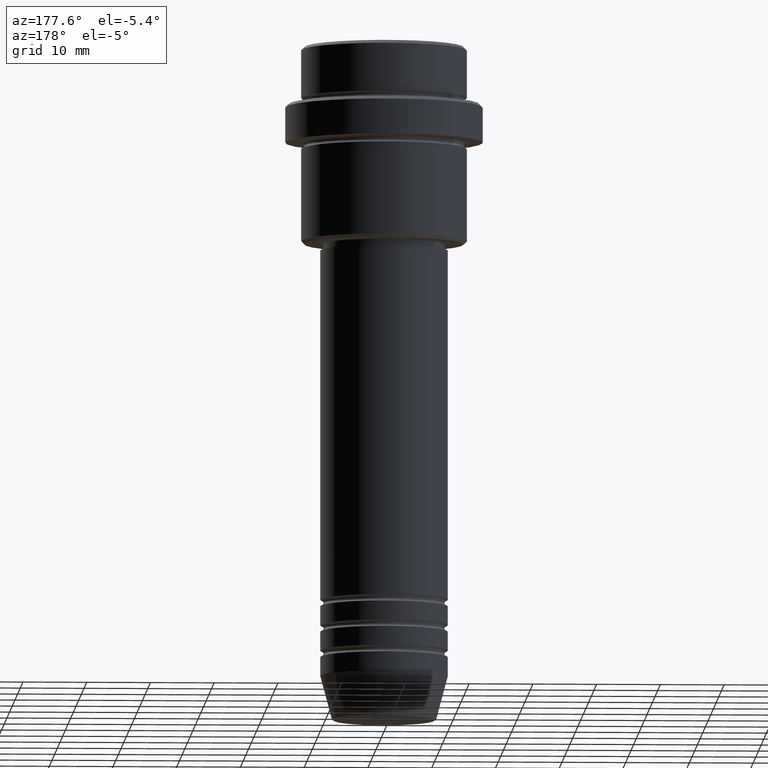
[diagram: clean part render]
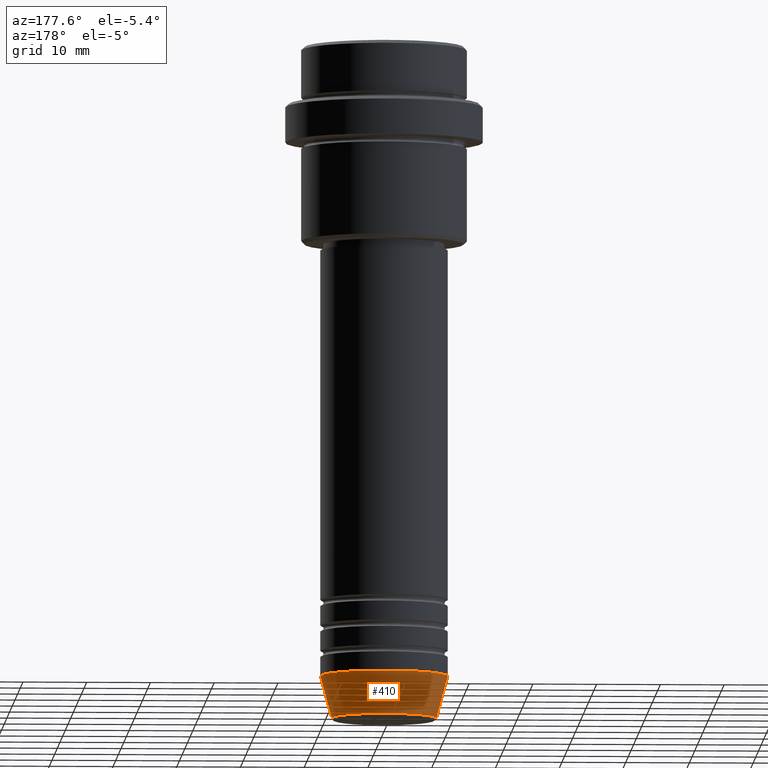
[diagram: same view with one face highlighted and labeled with its STEP entity id]
A machine part, auxiliary view. The second image highlights one B-rep face of the part: STEP entity #410.
In plain terms, the highlighted conical surface has half-angle 15 deg.
Its self-contained STEP definition (entity closure, byte-faithful):
#20 = DIRECTION ( 'NONE',  ( -0.000000000000000000, -0.000000000000000000, 1.000000000000000000 ) ) ;
#79 = DIRECTION ( 'NONE',  ( -0.2588190451025213501, 3.169619151431772337E-17, 0.9659258262890680902 ) ) ;
#89 = ORIENTED_EDGE ( 'NONE', *, *, #117, .F. ) ;
#117 = EDGE_CURVE ( 'NONE', #1191, #633, #960, .T. ) ;
#157 = CARTESIAN_POINT ( 'NONE',  ( 0.000000000000000000, 0.000000000000000000, -99.00000000000000000 ) ) ;
#233 = CARTESIAN_POINT ( 'NONE',  ( 0.000000000000000000, 0.000000000000000000, -105.6294095225512564 ) ) ;
#251 = CARTESIAN_POINT ( 'NONE',  ( 0.000000000000000000, 0.000000000000000000, -99.00000000000000000 ) ) ;
#286 = CIRCLE ( 'NONE', #935, 8.223655072137191269 ) ;
#287 = CARTESIAN_POINT ( 'NONE',  ( -10.00000000000000000, 1.224646799147353256E-15, -99.00000000000000000 ) ) ;
#340 = VERTEX_POINT ( 'NONE', #974 ) ;
#360 = VERTEX_POINT ( 'NONE', #642 ) ;
#399 = ORIENTED_EDGE ( 'NONE', *, *, #458, .T. ) ;
#408 = ORIENTED_EDGE ( 'NONE', *, *, #1402, .F. ) ;
#410 = ADVANCED_FACE ( 'NONE', ( #996 ), #576, .T. ) ;
#458 = EDGE_CURVE ( 'NONE', #340, #360, #286, .T. ) ;
#469 = EDGE_LOOP ( 'NONE', ( #399, #1192, #89, #408 ) ) ;
#480 = DIRECTION ( 'NONE',  ( 1.000000000000000000, 0.000000000000000000, 0.000000000000000000 ) ) ;
#494 = CARTESIAN_POINT ( 'NONE',  ( -10.00000000000000000, 1.224646799147353256E-15, -99.00000000000000000 ) ) ;
#576 = CONICAL_SURFACE ( 'NONE', #1103, 10.00000000000000000, 0.2617993877991500740 ) ;
#592 = CARTESIAN_POINT ( 'NONE',  ( 10.00000000000000000, 0.000000000000000000, -99.00000000000000000 ) ) ;
#631 = EDGE_CURVE ( 'NONE', #360, #633, #1043, .T. ) ;
#633 = VERTEX_POINT ( 'NONE', #494 ) ;
#642 = CARTESIAN_POINT ( 'NONE',  ( -8.223655072137191269, 1.115877042642912054E-15, -105.6294095225512564 ) ) ;
#648 = DIRECTION ( 'NONE',  ( -0.000000000000000000, -0.000000000000000000, 1.000000000000000000 ) ) ;
#713 = CARTESIAN_POINT ( 'NONE',  ( 10.00000000000000000, 0.000000000000000000, -99.00000000000000000 ) ) ;
#750 = VECTOR ( 'NONE', #79, 1000.000000000000000 ) ;
#883 = DIRECTION ( 'NONE',  ( 1.000000000000000000, 0.000000000000000000, 0.000000000000000000 ) ) ;
#935 = AXIS2_PLACEMENT_3D ( 'NONE', #233, #648, #1096 ) ;
#960 = CIRCLE ( 'NONE', #1076, 10.00000000000000000 ) ;
#974 = CARTESIAN_POINT ( 'NONE',  ( 8.223655072137191269, 0.000000000000000000, -105.6294095225512564 ) ) ;
#996 = FACE_OUTER_BOUND ( 'NONE', #469, .T. ) ;
#1020 = DIRECTION ( 'NONE',  ( -0.000000000000000000, -0.000000000000000000, 1.000000000000000000 ) ) ;
#1043 = LINE ( 'NONE', #287, #750 ) ;
#1076 = AXIS2_PLACEMENT_3D ( 'NONE', #157, #1020, #480 ) ;
#1085 = VECTOR ( 'NONE', #1184, 1000.000000000000000 ) ;
#1096 = DIRECTION ( 'NONE',  ( 1.000000000000000000, 0.000000000000000000, 0.000000000000000000 ) ) ;
#1103 = AXIS2_PLACEMENT_3D ( 'NONE', #251, #20, #883 ) ;
#1184 = DIRECTION ( 'NONE',  ( 0.2588190451025213501, 0.000000000000000000, 0.9659258262890680902 ) ) ;
#1191 = VERTEX_POINT ( 'NONE', #592 ) ;
#1192 = ORIENTED_EDGE ( 'NONE', *, *, #631, .T. ) ;
#1266 = LINE ( 'NONE', #713, #1085 ) ;
#1402 = EDGE_CURVE ( 'NONE', #340, #1191, #1266, .T. ) ;